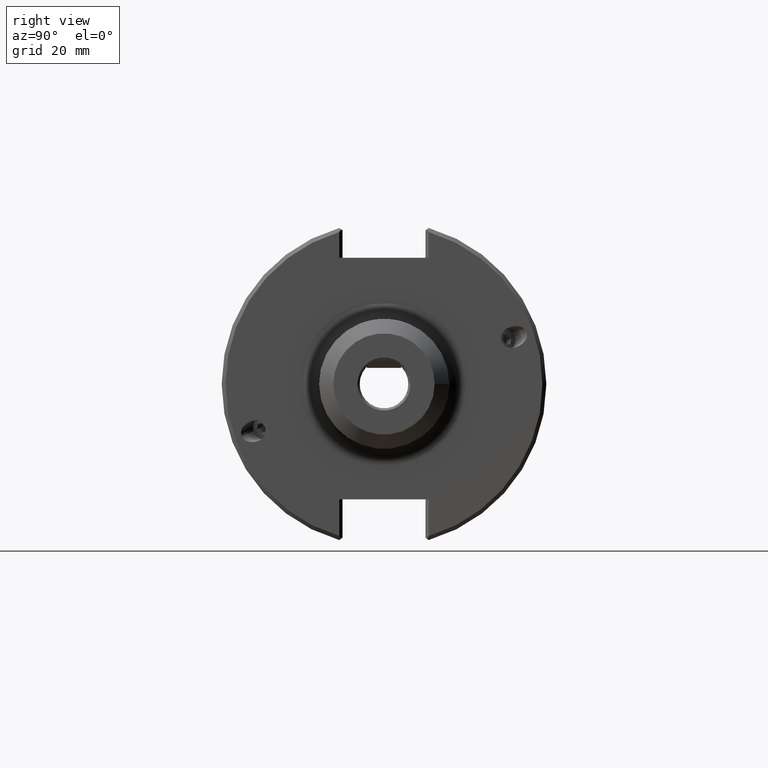
[diagram: clean part render]
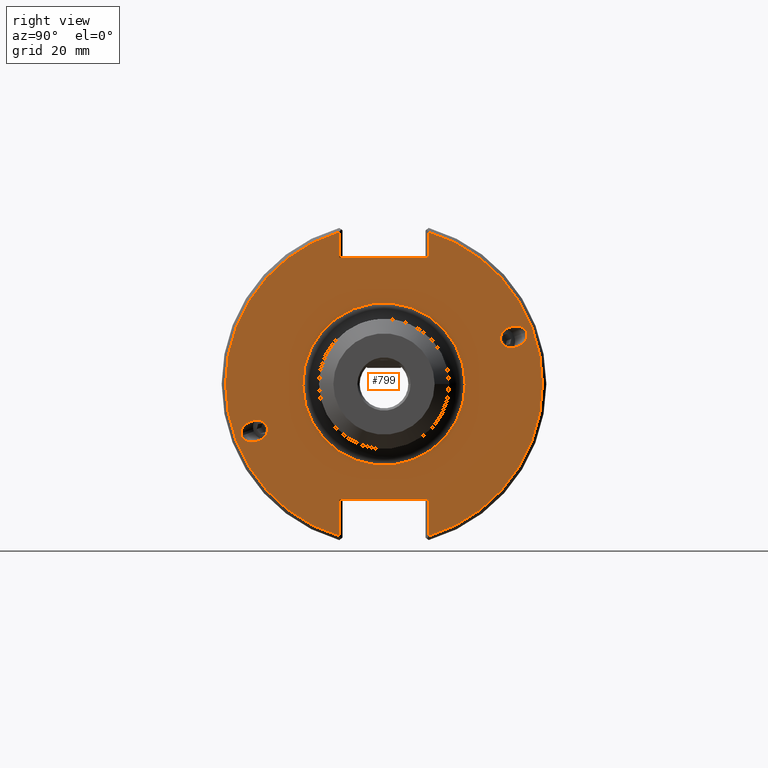
[diagram: same view with one face highlighted and labeled with its STEP entity id]
A machine part, right view. The second image highlights one B-rep face of the part: STEP entity #799.
In plain terms, the highlighted planar face has unit normal (1, 0, 0).
Its self-contained STEP definition (entity closure, byte-faithful):
#252=CARTESIAN_POINT('',(0.75,-0.8998894262239,-0.32753296527639));
#253=VERTEX_POINT('',#252);
#254=CARTESIAN_POINT('',(0.75,-0.998893255895421,-0.363567412355186));
#255=DIRECTION('',(-1.0,0.0,0.0));
#256=DIRECTION('',(0.0,-0.939692620785907,-0.342020143325673));
#257=AXIS2_PLACEMENT_3D('',#254,#255,#256);
#258=ELLIPSE('',#257,0.105357674926424,0.080708661417323);
#259=EDGE_CURVE('',#253,#253,#258,.T.);
#423=CARTESIAN_POINT('',(0.75,0.899889426223899,0.327532965276391));
#424=VERTEX_POINT('',#423);
#425=CARTESIAN_POINT('',(0.75,0.99889325589542,0.363567412355186));
#426=DIRECTION('',(-1.0,0.0,0.0));
#427=DIRECTION('',(0.0,0.939692620785909,0.342020143325668));
#428=AXIS2_PLACEMENT_3D('',#425,#426,#427);
#429=ELLIPSE('',#428,0.105357674926424,0.080708661417323);
#430=EDGE_CURVE('',#424,#424,#429,.T.);
#608=CARTESIAN_POINT('',(0.75,0.625,1.530808E-016));
#609=VERTEX_POINT('',#608);
#610=CARTESIAN_POINT('',(0.75,0.0,0.0));
#611=DIRECTION('',(1.0,0.0,0.0));
#612=DIRECTION('',(0.0,-1.0,0.0));
#613=AXIS2_PLACEMENT_3D('',#610,#611,#612);
#614=CIRCLE('',#613,0.625);
#615=EDGE_CURVE('',#609,#609,#614,.T.);
#717=CARTESIAN_POINT('',(0.75,0.4375,0.0));
#718=DIRECTION('',(1.0,0.0,0.0));
#719=DIRECTION('',(0.0,0.0,-1.0));
#720=AXIS2_PLACEMENT_3D('',#717,#718,#719);
#721=PLANE('',#720);
#722=CARTESIAN_POINT('',(0.75,-0.34500000000051,-0.888));
#723=VERTEX_POINT('',#722);
#724=CARTESIAN_POINT('',(0.75,0.34499999999949,-0.888));
#725=VERTEX_POINT('',#724);
#726=CARTESIAN_POINT('',(0.75,-0.34500000000051,-0.888));
#727=DIRECTION('',(0.0,1.0,0.0));
#728=VECTOR('',#727,0.69);
#729=LINE('',#726,#728);
#730=EDGE_CURVE('',#723,#725,#729,.T.);
#731=ORIENTED_EDGE('',*,*,#730,.T.);
#732=CARTESIAN_POINT('',(0.75,0.34499999999949,-1.170202973846996));
#733=VERTEX_POINT('',#732);
#734=CARTESIAN_POINT('',(0.75,0.34499999999949,-1.170202973846996));
#735=DIRECTION('',(0.0,0.0,1.0));
#736=VECTOR('',#735,0.282202973846995);
#737=LINE('',#734,#736);
#738=EDGE_CURVE('',#733,#725,#737,.T.);
#739=ORIENTED_EDGE('',*,*,#738,.F.);
#740=CARTESIAN_POINT('',(0.75,0.344999999999579,1.170202973846969));
#741=VERTEX_POINT('',#740);
#742=CARTESIAN_POINT('',(0.75,0.0,0.0));
#743=DIRECTION('',(-1.0,0.0,0.0));
#744=DIRECTION('',(0.0,1.0,0.0));
#745=AXIS2_PLACEMENT_3D('',#742,#743,#744);
#746=CIRCLE('',#745,1.22);
#747=EDGE_CURVE('',#741,#733,#746,.T.);
#748=ORIENTED_EDGE('',*,*,#747,.F.);
#749=CARTESIAN_POINT('',(0.75,0.344999999999579,0.972));
#750=VERTEX_POINT('',#749);
#751=CARTESIAN_POINT('',(0.75,0.344999999999579,0.972));
#752=DIRECTION('',(0.0,0.0,1.0));
#753=VECTOR('',#752,0.198202973846969);
#754=LINE('',#751,#753);
#755=EDGE_CURVE('',#750,#741,#754,.T.);
#756=ORIENTED_EDGE('',*,*,#755,.F.);
#757=CARTESIAN_POINT('',(0.75,-0.345000000000421,0.972));
#758=VERTEX_POINT('',#757);
#759=CARTESIAN_POINT('',(0.75,-0.345000000000422,0.972));
#760=DIRECTION('',(0.0,1.0,0.0));
#761=VECTOR('',#760,0.69);
#762=LINE('',#759,#761);
#763=EDGE_CURVE('',#758,#750,#762,.T.);
#764=ORIENTED_EDGE('',*,*,#763,.F.);
#765=CARTESIAN_POINT('',(0.75,-0.345000000000421,1.170202973846721));
#766=VERTEX_POINT('',#765);
#767=CARTESIAN_POINT('',(0.75,-0.345000000000421,1.170202973846721));
#768=DIRECTION('',(0.0,0.0,-1.0));
#769=VECTOR('',#768,0.198202973846721);
#770=LINE('',#767,#769);
#771=EDGE_CURVE('',#766,#758,#770,.T.);
#772=ORIENTED_EDGE('',*,*,#771,.F.);
#773=CARTESIAN_POINT('',(0.75,-0.34500000000051,-1.170202973846695));
#774=VERTEX_POINT('',#773);
#775=CARTESIAN_POINT('',(0.75,0.0,0.0));
#776=DIRECTION('',(-1.0,0.0,0.0));
#777=DIRECTION('',(0.0,-1.0,0.0));
#778=AXIS2_PLACEMENT_3D('',#775,#776,#777);
#779=CIRCLE('',#778,1.22);
#780=EDGE_CURVE('',#774,#766,#779,.T.);
#781=ORIENTED_EDGE('',*,*,#780,.F.);
#782=CARTESIAN_POINT('',(0.75,-0.34500000000051,-0.888));
#783=DIRECTION('',(0.0,0.0,-1.0));
#784=VECTOR('',#783,0.282202973846694);
#785=LINE('',#782,#784);
#786=EDGE_CURVE('',#723,#774,#785,.T.);
#787=ORIENTED_EDGE('',*,*,#786,.F.);
#788=EDGE_LOOP('',(#731,#739,#748,#756,#764,#772,#781,#787));
#789=FACE_OUTER_BOUND('',#788,.T.);
#790=ORIENTED_EDGE('',*,*,#259,.T.);
#791=EDGE_LOOP('',(#790));
#792=FACE_BOUND('',#791,.T.);
#793=ORIENTED_EDGE('',*,*,#430,.T.);
#794=EDGE_LOOP('',(#793));
#795=FACE_BOUND('',#794,.T.);
#796=ORIENTED_EDGE('',*,*,#615,.F.);
#797=EDGE_LOOP('',(#796));
#798=FACE_BOUND('',#797,.T.);
#799=ADVANCED_FACE('',(#789,#792,#795,#798),#721,.T.);